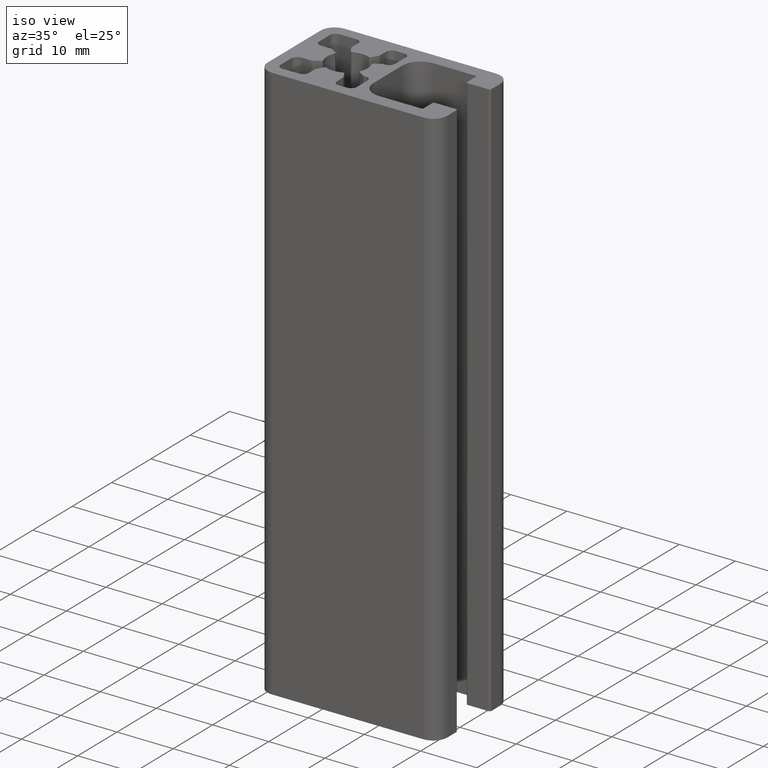
[diagram: clean part render]
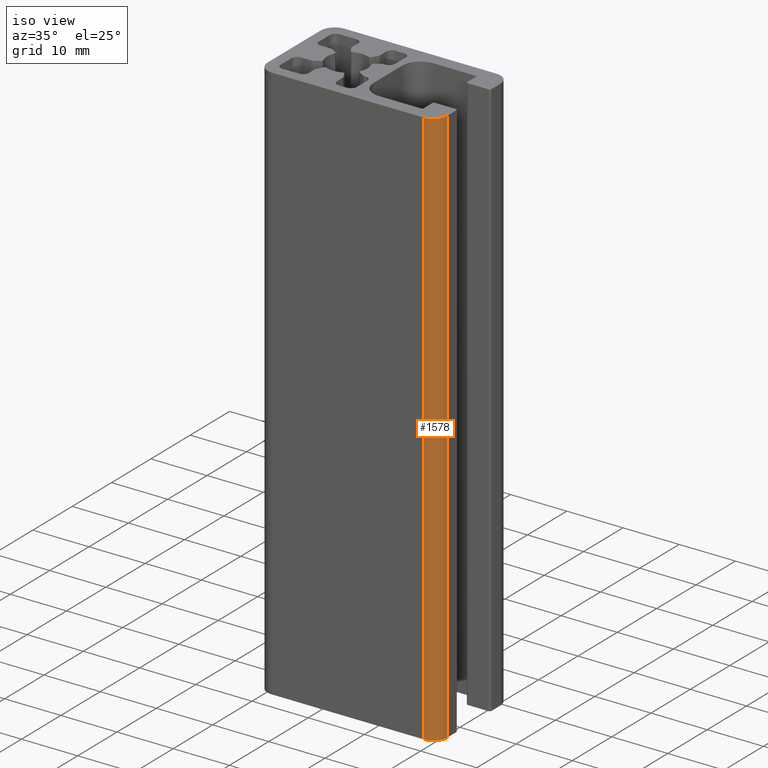
[diagram: same view with one face highlighted and labeled with its STEP entity id]
A machine part, iso view. The second image highlights one B-rep face of the part: STEP entity #1578.
In plain terms, the highlighted cylindrical surface (edge-blend (fillet) strip) has radius 2.5 mm, axis along (0, 0, 1).
Its self-contained STEP definition (entity closure, byte-faithful):
#82=CIRCLE('',#1701,2.5);
#100=CIRCLE('',#1744,2.5);
#142=CYLINDRICAL_SURFACE('',#1743,2.5);
#220=FACE_OUTER_BOUND('',#301,.T.);
#301=EDGE_LOOP('',(#1377,#1378,#1379,#1380));
#451=LINE('',#2689,#601);
#453=LINE('',#2693,#603);
#601=VECTOR('',#2215,100.);
#603=VECTOR('',#2219,100.);
#737=VERTEX_POINT('',#2592);
#738=VERTEX_POINT('',#2594);
#759=VERTEX_POINT('',#2688);
#760=VERTEX_POINT('',#2692);
#941=EDGE_CURVE('',#738,#737,#82,.T.);
#990=EDGE_CURVE('',#759,#738,#451,.T.);
#992=EDGE_CURVE('',#760,#737,#453,.T.);
#993=EDGE_CURVE('',#759,#760,#100,.T.);
#1377=ORIENTED_EDGE('',*,*,#941,.T.);
#1378=ORIENTED_EDGE('',*,*,#992,.F.);
#1379=ORIENTED_EDGE('',*,*,#993,.F.);
#1380=ORIENTED_EDGE('',*,*,#990,.T.);
#1578=ADVANCED_FACE('',(#220),#142,.T.);
#1701=AXIS2_PLACEMENT_3D('',#2595,#2100,#2101);
#1743=AXIS2_PLACEMENT_3D('',#2691,#2217,#2218);
#1744=AXIS2_PLACEMENT_3D('',#2694,#2220,#2221);
#2100=DIRECTION('center_axis',(0.,0.,-1.));
#2101=DIRECTION('ref_axis',(0.,-1.,0.));
#2215=DIRECTION('',(0.,0.,1.));
#2217=DIRECTION('center_axis',(0.,0.,1.));
#2218=DIRECTION('ref_axis',(0.,-1.,0.));
#2219=DIRECTION('',(0.,0.,1.));
#2220=DIRECTION('center_axis',(0.,0.,-1.));
#2221=DIRECTION('ref_axis',(0.,-1.,0.));
#2592=CARTESIAN_POINT('',(20.,-9.25,100.));
#2594=CARTESIAN_POINT('',(22.5,-6.75,100.));
#2595=CARTESIAN_POINT('Origin',(20.,-6.75,100.));
#2688=CARTESIAN_POINT('',(22.5,-6.75,0.));
#2689=CARTESIAN_POINT('',(22.5,-6.75,0.));
#2691=CARTESIAN_POINT('Origin',(20.,-6.75,0.));
#2692=CARTESIAN_POINT('',(20.,-9.25,0.));
#2693=CARTESIAN_POINT('',(20.,-9.25,0.));
#2694=CARTESIAN_POINT('Origin',(20.,-6.75,0.));